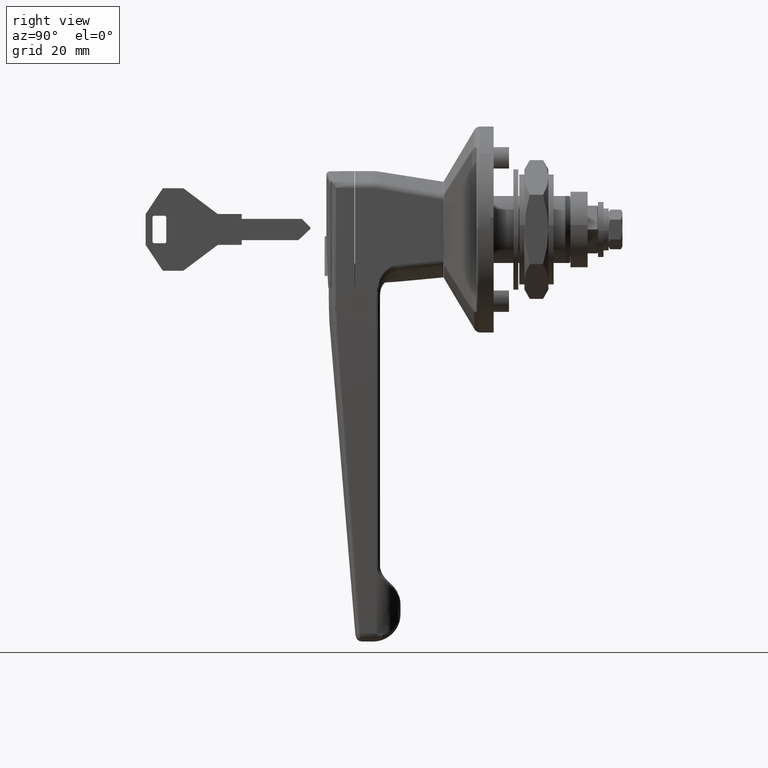
[diagram: clean part render]
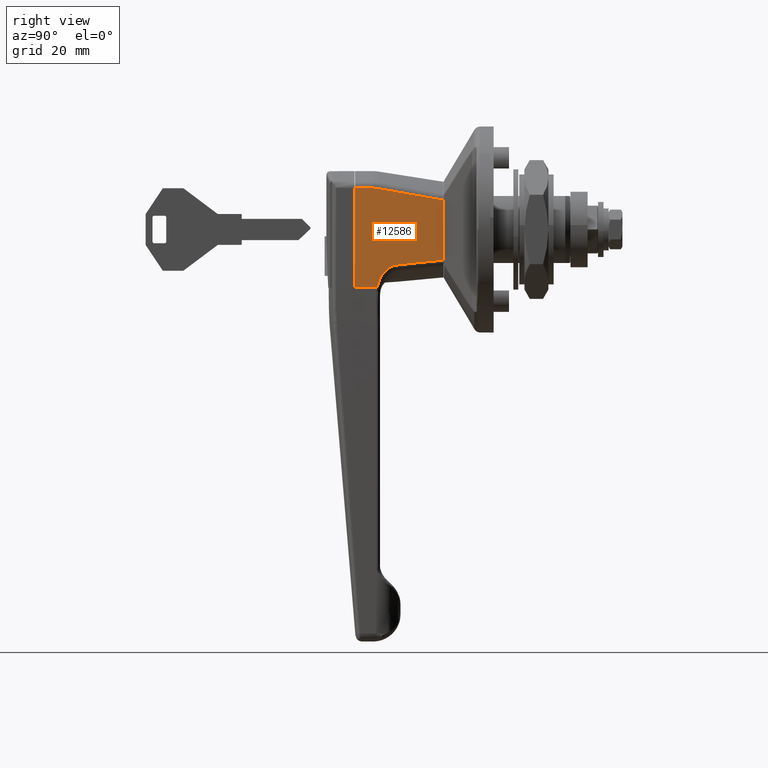
[diagram: same view with one face highlighted and labeled with its STEP entity id]
A machine part, right view. The second image highlights one B-rep face of the part: STEP entity #12586.
In plain terms, the highlighted face is a freeform B-spline surface patch.
Its self-contained STEP definition (entity closure, byte-faithful):
#6740=CARTESIAN_POINT('',(-33.941772038248452,-13.500000000000121,-17.0));
#6741=VERTEX_POINT('',#6740);
#6777=CARTESIAN_POINT('',(-27.813562268313099,-13.500000000000000,-10.264880556170439));
#6778=VERTEX_POINT('',#6777);
#6788=CARTESIAN_POINT('',(-33.941772038248452,-13.500000000000121,-17.0));
#6789=CARTESIAN_POINT('',(-33.412916774563932,-13.500000000000000,-14.323267164173499));
#6790=CARTESIAN_POINT('',(-32.086279073236909,-13.500000000000000,-12.673292134532989));
#6791=CARTESIAN_POINT('',(-31.294559696086960,-13.500000000000000,-11.688609427662090));
#6792=CARTESIAN_POINT('',(-30.225984194225951,-13.500000000000000,-11.063996761198901));
#6793=CARTESIAN_POINT('',(-29.079789261608919,-13.500000000000000,-10.394013337565150));
#6794=CARTESIAN_POINT('',(-27.813562268313099,-13.500000000000000,-10.264880556170439));
#6795=B_SPLINE_CURVE_WITH_KNOTS('',2,(#6788,#6789,#6790,#6791,#6792,#6793,#6794),.UNSPECIFIED.,.F.,.U.,(3,2,2,3),(0.0,0.500000000000000,0.750000000000000,1.0),.UNSPECIFIED.);
#6796=EDGE_CURVE('',#6741,#6778,#6795,.T.);
#6821=CARTESIAN_POINT('',(-14.600000000000000,-13.500000000000000,-8.909342005059822));
#6822=VERTEX_POINT('',#6821);
#6845=CARTESIAN_POINT('',(-27.813562268313099,-13.500000000000000,-10.264880556170439));
#6846=CARTESIAN_POINT('',(-23.408694188204130,-13.500000000000000,-9.816426232679877));
#6847=CARTESIAN_POINT('',(-19.004148405370440,-13.500000000000000,-9.364810246071087));
#6848=CARTESIAN_POINT('',(-14.600000000000000,-13.500000000000000,-8.909342005059822));
#6849=QUASI_UNIFORM_CURVE('',3,(#6845,#6846,#6847,#6848),.UNSPECIFIED.,.F.,.U.);
#6850=EDGE_CURVE('',#6778,#6822,#6849,.T.);
#12062=CARTESIAN_POINT('',(-33.852669068024063,-13.500000000000000,11.961433983109821));
#12063=VERTEX_POINT('',#12062);
#12077=CARTESIAN_POINT('',(-14.600000000000000,-13.500000000000000,8.543720049944330));
#12078=VERTEX_POINT('',#12077);
#12079=CARTESIAN_POINT('',(-14.600000000000000,-13.500000000000000,8.543720049944330));
#12080=CARTESIAN_POINT('',(-17.806258407176191,-13.500000000000000,9.127533413990580));
#12081=CARTESIAN_POINT('',(-21.014010146349300,-13.500000000000000,9.702934538965939));
#12082=CARTESIAN_POINT('',(-27.431768523945600,-13.500000000000000,10.841034488502810));
#12083=CARTESIAN_POINT('',(-30.641778915524618,-13.500000000000000,11.403712170793151));
#12084=CARTESIAN_POINT('',(-33.852669068024063,-13.500000000000000,11.961433983109821));
#12085=B_SPLINE_CURVE_WITH_KNOTS('',3,(#12079,#12080,#12081,#12082,#12083,#12084),.UNSPECIFIED.,.F.,.U.,(4,2,4),(0.0,0.500000000000000,1.0),.UNSPECIFIED.);
#12086=EDGE_CURVE('',#12078,#12063,#12085,.T.);
#12144=CARTESIAN_POINT('',(-35.057057999999898,-13.500000000000000,12.065374432940899));
#12145=VERTEX_POINT('',#12144);
#12159=CARTESIAN_POINT('',(-33.852669068024063,-13.500000000000000,11.961433983109821));
#12160=CARTESIAN_POINT('',(-34.251148787713049,-13.500000000000000,12.030648693973211));
#12161=CARTESIAN_POINT('',(-34.652604953928467,-13.500000000000000,12.065374432940960));
#12162=CARTESIAN_POINT('',(-35.057057999999898,-13.500000000000000,12.065374432940960));
#12163=QUASI_UNIFORM_CURVE('',3,(#12159,#12160,#12161,#12162),.UNSPECIFIED.,.F.,.U.);
#12164=EDGE_CURVE('',#12063,#12145,#12163,.T.);
#12191=CARTESIAN_POINT('',(-40.399999999999999,-13.500000000000000,12.065374432940899));
#12192=VERTEX_POINT('',#12191);
#12208=CARTESIAN_POINT('',(-35.057057999999898,-13.500000000000000,12.065374432940899));
#12209=CARTESIAN_POINT('',(-40.399999999999999,-13.500000000000000,12.065374432940899));
#12210=QUASI_UNIFORM_CURVE('',1,(#12208,#12209),.UNSPECIFIED.,.F.,.U.);
#12211=EDGE_CURVE('',#12145,#12192,#12210,.T.);
#12557=CARTESIAN_POINT('',(-41.688711553162463,-13.500000000000000,13.517189829531970));
#12558=CARTESIAN_POINT('',(-41.688711553162463,-13.500000000000000,-18.451816176185151));
#12559=CARTESIAN_POINT('',(-13.311291214877251,-13.500000000000000,13.517189829531970));
#12560=CARTESIAN_POINT('',(-13.311291214877251,-13.500000000000000,-18.451816176185151));
#12561=B_SPLINE_SURFACE_WITH_KNOTS('',1,1,((#12557,#12559),(#12558,#12560)),.UNSPECIFIED.,.F.,.F.,.U.,(2,2),(2,2),(0.0,31.969006005717119),(0.0,28.377420338285209),.UNSPECIFIED.);
#12562=CARTESIAN_POINT('',(-40.399999999999999,-13.500000000000000,-17.0));
#12563=VERTEX_POINT('',#12562);
#12564=CARTESIAN_POINT('',(-33.941772038248452,-13.500000000000121,-17.0));
#12565=CARTESIAN_POINT('',(-40.399999999999999,-13.500000000000000,-17.0));
#12566=QUASI_UNIFORM_CURVE('',1,(#12564,#12565),.UNSPECIFIED.,.F.,.U.);
#12567=EDGE_CURVE('',#6741,#12563,#12566,.T.);
#12568=ORIENTED_EDGE('',*,*,#12567,.F.);
#12569=ORIENTED_EDGE('',*,*,#6796,.T.);
#12570=ORIENTED_EDGE('',*,*,#6850,.T.);
#12571=CARTESIAN_POINT('',(-14.600000000000000,-13.500000000000000,-8.909342005059822));
#12572=CARTESIAN_POINT('',(-14.600000000000000,-13.500000000000000,8.543720049944330));
#12573=QUASI_UNIFORM_CURVE('',1,(#12571,#12572),.UNSPECIFIED.,.F.,.U.);
#12574=EDGE_CURVE('',#6822,#12078,#12573,.T.);
#12575=ORIENTED_EDGE('',*,*,#12574,.T.);
#12576=ORIENTED_EDGE('',*,*,#12086,.T.);
#12577=ORIENTED_EDGE('',*,*,#12164,.T.);
#12578=ORIENTED_EDGE('',*,*,#12211,.T.);
#12579=CARTESIAN_POINT('',(-40.399999999999999,-13.500000000000000,-17.0));
#12580=CARTESIAN_POINT('',(-40.399999999999999,-13.500000000000000,12.065374432940899));
#12581=QUASI_UNIFORM_CURVE('',1,(#12579,#12580),.UNSPECIFIED.,.F.,.U.);
#12582=EDGE_CURVE('',#12563,#12192,#12581,.T.);
#12583=ORIENTED_EDGE('',*,*,#12582,.F.);
#12584=EDGE_LOOP('',(#12568,#12569,#12570,#12575,#12576,#12577,#12578,#12583));
#12585=FACE_OUTER_BOUND('',#12584,.T.);
#12586=ADVANCED_FACE('',(#12585),#12561,.T.);